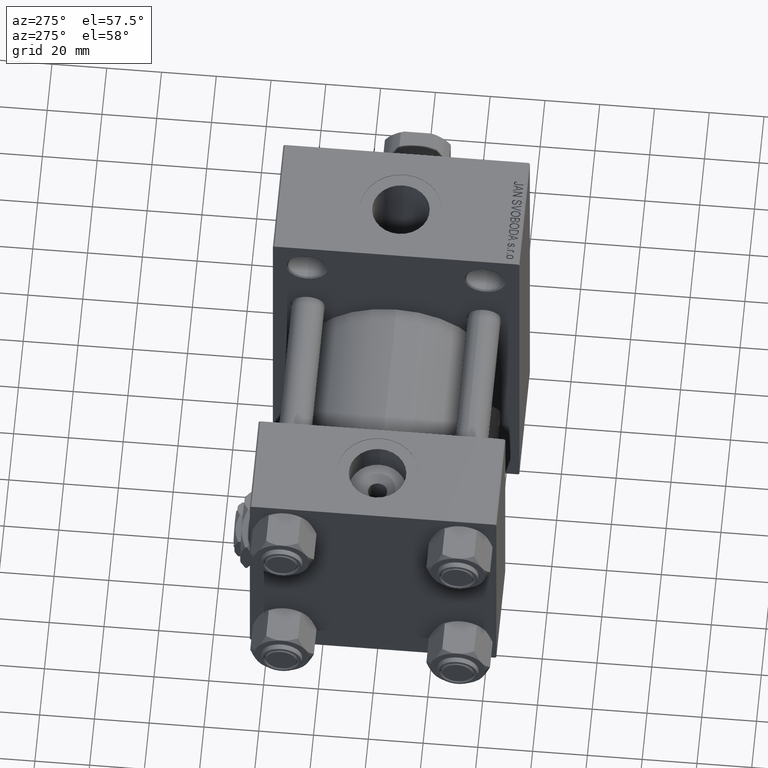
[diagram: clean part render]
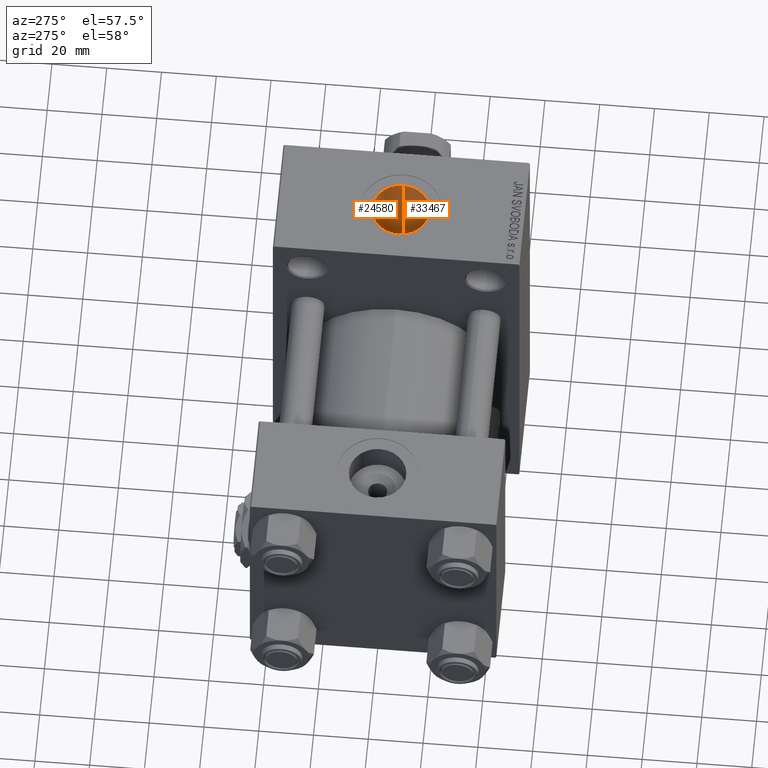
[diagram: same view with one multi-face feature highlighted, each face labeled with its STEP entity id]
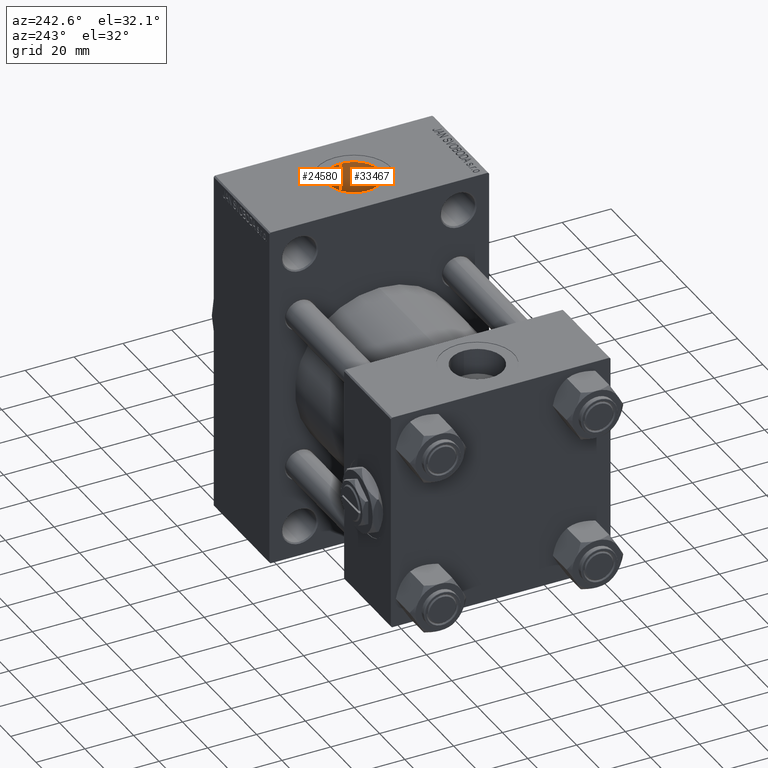
[diagram: same view with one multi-face feature highlighted, each face labeled with its STEP entity id]
A machine part, auxiliary view. The highlighted faces form ONE feature: a constant-radius fillet chain: 2 tangent blend faces with common blend radius 10.48 mm. The faces share edges in the B-rep.
A second angle (auxiliary view) of the same feature is appended — it is thin or edge-on in the first view.
Their STEP definitions:
[1] entity #33467 (Cylinder):
#2419 = CARTESIAN_POINT ( 'NONE',  ( 107.8536174240124694, -6.615275848649987189, 24.11313317637569043 ) ) ;
#2665 = CARTESIAN_POINT ( 'NONE',  ( 112.2166163324468187, -9.788752968036774860, 23.00467774806668331 ) ) ;
#2899 = CARTESIAN_POINT ( 'NONE',  ( 105.5200000000000102, -0.5526487399564715686, 25.00000000000000355 ) ) ;
#3116 = CARTESIAN_POINT ( 'NONE',  ( 123.6953313842686697, -7.126116182886379491, 29.14312091195552057 ) ) ;
#3119 = VERTEX_POINT ( 'NONE', #33826 ) ;
#3314 = LINE ( 'NONE', #44643, #41528 ) ;
#3852 = CARTESIAN_POINT ( 'NONE',  ( 122.8130789427704599, -7.973576581528564411, 28.92237366509943541 ) ) ;
#4047 = CARTESIAN_POINT ( 'NONE',  ( 105.5199999999999960, 3.061579607129328475E-15, 25.00000000000000000 ) ) ;
#6376 = CARTESIAN_POINT ( 'NONE',  ( 108.2050283705145972, -7.025831027277333440, 23.99580452550001652 ) ) ;
#6593 = CARTESIAN_POINT ( 'NONE',  ( 126.0890390176183047, -2.865498728266689277, 29.86553233084089598 ) ) ;
#7050 = AXIS2_PLACEMENT_3D ( 'NONE', #45043, #29959, #11390 ) ;
#7152 = CARTESIAN_POINT ( 'NONE',  ( 116.0000000000000000, -1.094803260394251466E-14, 93.79999999999996874 ) ) ;
#7905 = FACE_OUTER_BOUND ( 'NONE', #22568, .T. ) ;
#8788 = ORIENTED_EDGE ( 'NONE', *, *, #27553, .T. ) ;
#9358 = ORIENTED_EDGE ( 'NONE', *, *, #48618, .F. ) ;
#9839 = CARTESIAN_POINT ( 'NONE',  ( 106.2133645239136825, -3.788497290311540144, 24.71686331191869712 ) ) ;
#10337 = CARTESIAN_POINT ( 'NONE',  ( 110.2686167523512495, -8.790768987372265642, 23.40594614296280440 ) ) ;
#11030 = CARTESIAN_POINT ( 'NONE',  ( 116.0079132330771188, -10.51264281222110952, 28.09784841831593738 ) ) ;
#11130 = ORIENTED_EDGE ( 'NONE', *, *, #47402, .T. ) ;
#11281 = CARTESIAN_POINT ( 'NONE',  ( 126.3561768723854044, -1.659168348792957159, 29.95693324364475885 ) ) ;
#11390 = DIRECTION ( 'NONE',  ( 1.000000000000000000, 0.000000000000000000, 0.000000000000000000 ) ) ;
#11585 = B_SPLINE_CURVE_WITH_KNOTS ( 'NONE', 3,
 ( #21932, #25657, #29613, #11281, #14268, #6593, #44454, #18709, #44927, #22176, #29131, #3116, #14026, #3852, #37521, #40746, #33802, #33321, #36787, #18224, #48425, #48908, #26386, #14506, #11030, #25891, #26134, #41230, #40986, #14997 ),
 .UNSPECIFIED., .F., .F.,
 ( 4, 2, 2, 2, 2, 2, 2, 2, 2, 2, 2, 2, 2, 2, 4 ),
 ( 0.01983178583558416891, 0.02107005794959066619, 0.02230833006359716347, 0.02354660217760366075, 0.02478487429161015804, 0.02726141851962313178, 0.02849969063362963254, 0.02973796274763613329, 0.03097623486164263404, 0.03221450697564913479, 0.03345277908965563207, 0.03469105120366213629, 0.03716759543167513780, 0.03840586754568163508, 0.03964413965968813930 ),
 .UNSPECIFIED. ) ;
#13808 = CARTESIAN_POINT ( 'NONE',  ( 112.7400000000000375, -9.960060240781698937, 22.93026820601973981 ) ) ;
#13912 = VERTEX_POINT ( 'NONE', #30392 ) ;
#14026 = CARTESIAN_POINT ( 'NONE',  ( 123.4108071772773485, -7.421314247701561229, 29.06898203862667529 ) ) ;
#14268 = CARTESIAN_POINT ( 'NONE',  ( 126.2826880867323496, -2.065458053724753995, 29.93150493033227022 ) ) ;
#14506 = CARTESIAN_POINT ( 'NONE',  ( 116.8323486893806091, -10.48013219117958350, 28.11025684355165666 ) ) ;
#14997 = CARTESIAN_POINT ( 'NONE',  ( 112.7400000000000375, -9.960060240781698937, 28.29836037653064551 ) ) ;
#18224 = CARTESIAN_POINT ( 'NONE',  ( 119.6511764337021759, -9.831921411942657230, 28.34362233849840607 ) ) ;
#18410 = VERTEX_POINT ( 'NONE', #28938 ) ;
#18709 = CARTESIAN_POINT ( 'NONE',  ( 125.6812555715534074, -4.034166111592121240, 29.73008374493929651 ) ) ;
#19037 = CYLINDRICAL_SURFACE ( 'NONE', #39522, 10.48000000000000398 ) ;
#19206 = ORIENTED_EDGE ( 'NONE', *, *, #44425, .T. ) ;
#19973 = LINE ( 'NONE', #39256, #20534 ) ;
#20078 = VERTEX_POINT ( 'NONE', #46275 ) ;
#20534 = VECTOR ( 'NONE', #48151, 1000.000000000000000 ) ;
#21238 = CARTESIAN_POINT ( 'NONE',  ( 108.9710119791482725, -7.792124981740102818, 23.75802442794438463 ) ) ;
#21932 = CARTESIAN_POINT ( 'NONE',  ( 126.4800000000000040, 3.673940397618681979E-15, 30.00000000000000000 ) ) ;
#22176 = CARTESIAN_POINT ( 'NONE',  ( 124.9516850616486181, -5.511024492678212816, 29.49874548845619415 ) ) ;
#22568 = EDGE_LOOP ( 'NONE', ( #38522, #8788, #11130, #9358, #19206, #23735 ) ) ;
#23735 = ORIENTED_EDGE ( 'NONE', *, *, #48623, .F. ) ;
#24166 = B_SPLINE_CURVE_WITH_KNOTS ( 'NONE', 3,
 ( #13808, #2665, #33346, #29393, #10337, #48449, #21238, #6376, #2419, #25682, #32614, #25441, #9839, #28907, #25197, #33098, #47480, #43987, #2899, #28668 ),
 .UNSPECIFIED., .F., .F.,
 ( 4, 2, 2, 2, 2, 2, 2, 2, 2, 4 ),
 ( 0.01988964932192578347, 0.02154756030224162094, 0.02320547128255745842, 0.02486338226287329589, 0.02652129324318913683, 0.02817920422350497084, 0.02983711520382081178, 0.03066607069397872878, 0.03149502618413664579, 0.03315293716445248673 ),
 .UNSPECIFIED. ) ;
#25197 = CARTESIAN_POINT ( 'NONE',  ( 105.8813829677837219, -2.742400269040762062, 24.85060264423316667 ) ) ;
#25441 = CARTESIAN_POINT ( 'NONE',  ( 106.4236355937511860, -4.292206019337017509, 24.63377942571623791 ) ) ;
#25657 = CARTESIAN_POINT ( 'NONE',  ( 126.4799999999999471, -0.4140493469419934125, 30.00000000000001066 ) ) ;
#25682 = CARTESIAN_POINT ( 'NONE',  ( 107.2133851667944242, -5.737667069548106014, 24.33689057242902365 ) ) ;
#25850 = DIRECTION ( 'NONE',  ( 0.000000000000000000, 0.000000000000000000, -1.000000000000000000 ) ) ;
#25891 = CARTESIAN_POINT ( 'NONE',  ( 114.7699339040235316, -10.41578934976508819, 28.13383227326702496 ) ) ;
#26134 = CARTESIAN_POINT ( 'NONE',  ( 114.3547903624770328, -10.35843936797070697, 28.15511119385354633 ) ) ;
#26386 = CARTESIAN_POINT ( 'NONE',  ( 118.0676511321232738, -10.28246626870992841, 28.18289933756998522 ) ) ;
#27553 = EDGE_CURVE ( 'NONE', #20078, #33452, #19973, .T. ) ;
#28668 = CARTESIAN_POINT ( 'NONE',  ( 105.5199999999999960, 3.061579607129328475E-15, 25.00000000000000000 ) ) ;
#28907 = CARTESIAN_POINT ( 'NONE',  ( 105.9569663818569580, -3.007160148706868874, 24.81987104649663323 ) ) ;
#28938 = CARTESIAN_POINT ( 'NONE',  ( 112.7400000000000375, -9.960060240781698937, 28.29836037653064551 ) ) ;
#29131 = CARTESIAN_POINT ( 'NONE',  ( 124.4977574635255451, -6.188339515081483277, 29.36182159556007321 ) ) ;
#29393 = CARTESIAN_POINT ( 'NONE',  ( 110.7309451898282191, -9.075553538226490247, 23.29606161660610297 ) ) ;
#29613 = CARTESIAN_POINT ( 'NONE',  ( 126.4550640607020284, -0.8335913317593991456, 29.99126230196789678 ) ) ;
#29959 = DIRECTION ( 'NONE',  ( -0.000000000000000000, -0.000000000000000000, -1.000000000000000000 ) ) ;
#30172 = DIRECTION ( 'NONE',  ( 0.000000000000000000, 0.000000000000000000, -1.000000000000000000 ) ) ;
#30392 = CARTESIAN_POINT ( 'NONE',  ( 112.7400000000000375, -9.960060240781698937, 22.93026820601973981 ) ) ;
#30591 = EDGE_CURVE ( 'NONE', #20078, #3119, #30791, .T. ) ;
#30791 = CIRCLE ( 'NONE', #7050, 10.48000000000000398 ) ;
#32614 = CARTESIAN_POINT ( 'NONE',  ( 106.9226781161778490, -5.266119555344892511, 24.44410166351154601 ) ) ;
#33098 = CARTESIAN_POINT ( 'NONE',  ( 105.7506109030364456, -2.203904040410064713, 24.90413656399007891 ) ) ;
#33149 = CARTESIAN_POINT ( 'NONE',  ( 126.4800000000000040, 3.673940397618681979E-15, 30.00000000000000000 ) ) ;
#33321 = CARTESIAN_POINT ( 'NONE',  ( 120.7754301067501075, -9.337894368229051167, 28.51050477243452619 ) ) ;
#33346 = CARTESIAN_POINT ( 'NONE',  ( 111.7027284824028044, -9.574030923381087632, 23.09567255457320911 ) ) ;
#33452 = VERTEX_POINT ( 'NONE', #33149 ) ;
#33467 = ADVANCED_FACE ( 'NONE', ( #7905 ), #19037, .F. ) ;
#33633 = DIRECTION ( 'NONE',  ( -1.000000000000000000, 0.000000000000000000, 0.000000000000000000 ) ) ;
#33802 = CARTESIAN_POINT ( 'NONE',  ( 121.4955340743380532, -8.933090684329171083, 28.63992046840855110 ) ) ;
#33826 = CARTESIAN_POINT ( 'NONE',  ( 105.5199999999999960, -1.094803260394251466E-14, 70.79999999999996874 ) ) ;
#36737 = DIRECTION ( 'NONE',  ( -0.000000000000000000, -0.000000000000000000, 1.000000000000000000 ) ) ;
#36787 = CARTESIAN_POINT ( 'NONE',  ( 120.4065122839482740, -9.517374506241301546, 28.45078537450224943 ) ) ;
#37521 = CARTESIAN_POINT ( 'NONE',  ( 122.4991569451229054, -8.231478667600777399, 28.84970080865382869 ) ) ;
#38522 = ORIENTED_EDGE ( 'NONE', *, *, #30591, .F. ) ;
#39256 = CARTESIAN_POINT ( 'NONE',  ( 126.4800000000000040, -9.664602758436087591E-15, 93.79999999999996874 ) ) ;
#39522 = AXIS2_PLACEMENT_3D ( 'NONE', #7152, #30172, #33633 ) ;
#39731 = VERTEX_POINT ( 'NONE', #4047 ) ;
#40746 = CARTESIAN_POINT ( 'NONE',  ( 121.8407164529724724, -8.711045480795176488, 28.70853818005238267 ) ) ;
#40986 = CARTESIAN_POINT ( 'NONE',  ( 113.1356366639054301, -10.08955499213377394, 28.25278262901557724 ) ) ;
#41230 = CARTESIAN_POINT ( 'NONE',  ( 113.5376865130923534, -10.19514556951084749, 28.21465150049997916 ) ) ;
#41528 = VECTOR ( 'NONE', #25850, 1000.000000000000000 ) ;
#43987 = CARTESIAN_POINT ( 'NONE',  ( 105.5634374036090293, -1.103933992171570289, 24.98169420149659103 ) ) ;
#44163 = LINE ( 'NONE', #48376, #44694 ) ;
#44425 = EDGE_CURVE ( 'NONE', #13912, #39731, #24166, .T. ) ;
#44454 = CARTESIAN_POINT ( 'NONE',  ( 125.9688766884320188, -3.259248874892656911, 29.82498403132067466 ) ) ;
#44643 = CARTESIAN_POINT ( 'NONE',  ( 105.5199999999999960, -1.094803260394251466E-14, 93.79999999999996874 ) ) ;
#44694 = VECTOR ( 'NONE', #36737, 1000.000000000000000 ) ;
#44927 = CARTESIAN_POINT ( 'NONE',  ( 125.5132943898858144, -4.415432476193863032, 29.67559266697256604 ) ) ;
#45043 = CARTESIAN_POINT ( 'NONE',  ( 116.0000000000000000, -1.094803260394251466E-14, 70.79999999999996874 ) ) ;
#46275 = CARTESIAN_POINT ( 'NONE',  ( 126.4800000000000040, -9.664602758436087591E-15, 70.79999999999996874 ) ) ;
#47402 = EDGE_CURVE ( 'NONE', #33452, #18410, #11585, .T. ) ;
#47480 = CARTESIAN_POINT ( 'NONE',  ( 105.6952564760870388, -1.928778934517578758, 24.92700825772721984 ) ) ;
#48151 = DIRECTION ( 'NONE',  ( 0.000000000000000000, 0.000000000000000000, -1.000000000000000000 ) ) ;
#48376 = CARTESIAN_POINT ( 'NONE',  ( 112.7400000000000375, -9.960060240781698937, 93.79999999999996874 ) ) ;
#48425 = CARTESIAN_POINT ( 'NONE',  ( 119.2647576281308659, -9.966984633129877480, 28.29617465522276376 ) ) ;
#48449 = CARTESIAN_POINT ( 'NONE',  ( 109.3891897638274031, -8.150065112751551766, 23.63667431967812504 ) ) ;
#48618 = EDGE_CURVE ( 'NONE', #13912, #18410, #44163, .T. ) ;
#48623 = EDGE_CURVE ( 'NONE', #3119, #39731, #3314, .T. ) ;
#48908 = CARTESIAN_POINT ( 'NONE',  ( 118.4739236950475174, -10.19211099814794075, 28.21586709986687325 ) ) ;
[2] entity #24580 (Cylinder):
#277 = CARTESIAN_POINT ( 'NONE',  ( 110.7334908428740476, 9.077331294423922614, 23.29539276492242905 ) ) ;
#589 = VECTOR ( 'NONE', #19286, 1000.000000000000000 ) ;
#639 = CARTESIAN_POINT ( 'NONE',  ( 125.1456671303457568, 5.133639323080407380, 29.55979794353439871 ) ) ;
#2576 = ORIENTED_EDGE ( 'NONE', *, *, #32062, .T. ) ;
#3119 = VERTEX_POINT ( 'NONE', #33826 ) ;
#3314 = LINE ( 'NONE', #44643, #41528 ) ;
#3725 = CARTESIAN_POINT ( 'NONE',  ( 106.2242790990456740, 3.787004330726786439, 24.71284667523638845 ) ) ;
#3980 = CARTESIAN_POINT ( 'NONE',  ( 110.2707649538851058, 8.791964167062978674, 23.40546361773868611 ) ) ;
#4047 = CARTESIAN_POINT ( 'NONE',  ( 105.5199999999999960, 3.061579607129328475E-15, 25.00000000000000000 ) ) ;
#4350 = CARTESIAN_POINT ( 'NONE',  ( 117.2444743077375477, 10.41402026144617921, 28.13455134504983590 ) ) ;
#4424 = LINE ( 'NONE', #23004, #589 ) ;
#5306 = CARTESIAN_POINT ( 'NONE',  ( 119.2590511626586647, 9.968980903825993778, 28.29547369785728250 ) ) ;
#6037 = CARTESIAN_POINT ( 'NONE',  ( 126.3830360161806396, 1.648097371455661930, 29.96570276014226408 ) ) ;
#7449 = CARTESIAN_POINT ( 'NONE',  ( 105.7407124806769758, 2.210995156578866805, 24.90815361058044530 ) ) ;
#7701 = CARTESIAN_POINT ( 'NONE',  ( 108.2191150461718792, 7.025825097695094890, 23.99341311413245847 ) ) ;
#8067 = CARTESIAN_POINT ( 'NONE',  ( 122.8380018292597526, 7.984464829307546196, 28.92238598225677748 ) ) ;
#8551 = CARTESIAN_POINT ( 'NONE',  ( 118.4620306645708467, 10.19511646566076912, 28.21478357702914863 ) ) ;
#8783 = CARTESIAN_POINT ( 'NONE',  ( 114.3405906774044922, 10.38092379675460464, 28.14678245432905257 ) ) ;
#9270 = B_SPLINE_CURVE_WITH_KNOTS ( 'NONE', 3,
 ( #26764, #48791, #26266, #18837, #41354, #7449, #22546, #37644, #3725, #26512, #33933, #15379, #15129, #45311, #41606, #7701, #22796, #34185, #37895, #3980, #277, #30472, #45559, #38154 ),
 .UNSPECIFIED., .F., .F.,
 ( 4, 2, 2, 2, 2, 2, 2, 2, 2, 2, 2, 4 ),
 ( 0.03315293716445248673, 0.03398143856659530115, 0.03480993996873811558, 0.03646694277302374443, 0.03729544417516655191, 0.03812394557730936634, 0.03978094838159499519, 0.04060944978373780961, 0.04143795118588062404, 0.04309495399016624595, 0.04475195679445187480, 0.04640895959873749671 ),
 .UNSPECIFIED. ) ;
#10804 = EDGE_CURVE ( 'NONE', #21964, #20368, #4424, .T. ) ;
#11566 = CARTESIAN_POINT ( 'NONE',  ( 116.0000000000000000, -1.094803260394251466E-14, 70.79999999999996874 ) ) ;
#11756 = DIRECTION ( 'NONE',  ( 0.000000000000000000, 0.000000000000000000, -1.000000000000000000 ) ) ;
#11776 = ORIENTED_EDGE ( 'NONE', *, *, #27553, .F. ) ;
#11784 = CARTESIAN_POINT ( 'NONE',  ( 118.0591099703892723, 10.28399729863217438, 28.18233838691855198 ) ) ;
#12269 = CARTESIAN_POINT ( 'NONE',  ( 125.6823871826148178, 4.031213830330547587, 29.73045584359391214 ) ) ;
#12481 = DIRECTION ( 'NONE',  ( -1.000000000000000000, 0.000000000000000000, 0.000000000000000000 ) ) ;
#13723 = CARTESIAN_POINT ( 'NONE',  ( 126.4800000000000040, 3.673940397618681979E-15, 30.00000000000000000 ) ) ;
#15129 = CARTESIAN_POINT ( 'NONE',  ( 107.2168952918916318, 5.742964677340212098, 24.33562597405337158 ) ) ;
#15379 = CARTESIAN_POINT ( 'NONE',  ( 106.9306559456026946, 5.280155339913236823, 24.44112276137722262 ) ) ;
#16457 = CARTESIAN_POINT ( 'NONE',  ( 116.0002282757462808, 10.48827684731155330, 28.10687390860659107 ) ) ;
#16748 = AXIS2_PLACEMENT_3D ( 'NONE', #34273, #11756, #12481 ) ;
#18837 = CARTESIAN_POINT ( 'NONE',  ( 105.5748675089374160, 1.106412475567419396, 24.97704123077414096 ) ) ;
#19286 = DIRECTION ( 'NONE',  ( 0.000000000000000000, 0.000000000000000000, -1.000000000000000000 ) ) ;
#19973 = LINE ( 'NONE', #39256, #20534 ) ;
#20078 = VERTEX_POINT ( 'NONE', #46275 ) ;
#20368 = VERTEX_POINT ( 'NONE', #34824 ) ;
#20417 = CARTESIAN_POINT ( 'NONE',  ( 119.6536175153769790, 9.831116643405007238, 28.34390843602811927 ) ) ;
#20534 = VECTOR ( 'NONE', #48151, 1000.000000000000000 ) ;
#20674 = AXIS2_PLACEMENT_3D ( 'NONE', #11566, #27638, #31106 ) ;
#21521 = B_SPLINE_CURVE_WITH_KNOTS ( 'NONE', 3,
 ( #23166, #42689, #8783, #39219, #16457, #23894, #4350, #11784, #8551, #5306, #20417, #26884, #46174, #8067, #23653, #34549, #38984, #27130, #639, #42214, #12269, #24864, #28093, #6037, #44147, #13723 ),
 .UNSPECIFIED., .F., .F.,
 ( 4, 2, 2, 2, 2, 2, 2, 2, 2, 2, 2, 2, 4 ),
 ( 0.000000000000000000, 0.002478973229448049737, 0.003718459844172074605, 0.004957946458896099473, 0.006197433073620124341, 0.007436919688344149210, 0.009915892917792157313, 0.01239486614724016542, 0.01363435276196416600, 0.01487383937668817005, 0.01611332599141217237, 0.01735281260613617815, 0.01983178583558416891 ),
 .UNSPECIFIED. ) ;
#21798 = EDGE_CURVE ( 'NONE', #21964, #33452, #21521, .T. ) ;
#21964 = VERTEX_POINT ( 'NONE', #47142 ) ;
#22546 = CARTESIAN_POINT ( 'NONE',  ( 105.8714792709155716, 2.746840284963956158, 24.85421337676989140 ) ) ;
#22796 = CARTESIAN_POINT ( 'NONE',  ( 108.4055094269453008, 7.226927296489276564, 23.93349527817645139 ) ) ;
#23004 = CARTESIAN_POINT ( 'NONE',  ( 112.7400000000000375, 9.960060240781677621, 93.79999999999996874 ) ) ;
#23166 = CARTESIAN_POINT ( 'NONE',  ( 112.7400000000000375, 9.960060240781677621, 28.29836037653065262 ) ) ;
#23653 = CARTESIAN_POINT ( 'NONE',  ( 123.4361280113390649, 7.429595108124754432, 29.07242469717889222 ) ) ;
#23894 = CARTESIAN_POINT ( 'NONE',  ( 116.8327597629122323, 10.45516439159307254, 28.11920784241486970 ) ) ;
#24157 = EDGE_CURVE ( 'NONE', #3119, #20078, #35676, .T. ) ;
#24580 = ADVANCED_FACE ( 'NONE', ( #45404 ), #27341, .F. ) ;
#24864 = CARTESIAN_POINT ( 'NONE',  ( 125.9683417730960713, 3.260593319422029346, 29.82480881445975385 ) ) ;
#25850 = DIRECTION ( 'NONE',  ( 0.000000000000000000, 0.000000000000000000, -1.000000000000000000 ) ) ;
#26266 = CARTESIAN_POINT ( 'NONE',  ( 105.5308991753443166, 0.5526879277622503972, 24.99542504668380616 ) ) ;
#26512 = CARTESIAN_POINT ( 'NONE',  ( 106.4364837241044199, 4.294796546401079773, 24.62967549968344017 ) ) ;
#26764 = CARTESIAN_POINT ( 'NONE',  ( 105.5199999999999960, 3.061579607129328475E-15, 25.00000000000000000 ) ) ;
#26828 = ORIENTED_EDGE ( 'NONE', *, *, #10804, .F. ) ;
#26884 = CARTESIAN_POINT ( 'NONE',  ( 120.7931686517055709, 9.355930520045824039, 28.50576369173083435 ) ) ;
#27130 = CARTESIAN_POINT ( 'NONE',  ( 124.9382592368621943, 5.487081182378864774, 29.49600040171357307 ) ) ;
#27341 = CYLINDRICAL_SURFACE ( 'NONE', #16748, 10.48000000000000398 ) ;
#27553 = EDGE_CURVE ( 'NONE', #20078, #33452, #19973, .T. ) ;
#27638 = DIRECTION ( 'NONE',  ( -0.000000000000000000, -0.000000000000000000, -1.000000000000000000 ) ) ;
#28093 = CARTESIAN_POINT ( 'NONE',  ( 126.0901672462784688, 2.862209008249557929, 29.86591119163860952 ) ) ;
#30472 = CARTESIAN_POINT ( 'NONE',  ( 111.7145022253386344, 9.579591377203493963, 23.09339075464095714 ) ) ;
#31106 = DIRECTION ( 'NONE',  ( 1.000000000000000000, 0.000000000000000000, 0.000000000000000000 ) ) ;
#32062 = EDGE_CURVE ( 'NONE', #39731, #20368, #9270, .T. ) ;
#33149 = CARTESIAN_POINT ( 'NONE',  ( 126.4800000000000040, 3.673940397618681979E-15, 30.00000000000000000 ) ) ;
#33452 = VERTEX_POINT ( 'NONE', #33149 ) ;
#33826 = CARTESIAN_POINT ( 'NONE',  ( 105.5199999999999960, -1.094803260394251466E-14, 70.79999999999996874 ) ) ;
#33933 = CARTESIAN_POINT ( 'NONE',  ( 106.5534232013268507, 4.546234407114488896, 24.58442359052068227 ) ) ;
#34185 = CARTESIAN_POINT ( 'NONE',  ( 108.9846989220167615, 7.804704455460329093, 23.75393200882464484 ) ) ;
#34273 = CARTESIAN_POINT ( 'NONE',  ( 116.0000000000000000, -1.094803260394251466E-14, 93.79999999999996874 ) ) ;
#34549 = CARTESIAN_POINT ( 'NONE',  ( 124.2306735501210682, 6.500194899328790576, 29.28905352826703279 ) ) ;
#34824 = CARTESIAN_POINT ( 'NONE',  ( 112.7400000000000375, 9.960060240781677621, 22.93026820601974691 ) ) ;
#35676 = CIRCLE ( 'NONE', #20674, 10.48000000000000398 ) ;
#37644 = CARTESIAN_POINT ( 'NONE',  ( 106.1284384137638739, 3.529601645624522277, 24.75098332906153331 ) ) ;
#37895 = CARTESIAN_POINT ( 'NONE',  ( 109.3963603562479676, 8.155655190358228168, 23.63471280748279924 ) ) ;
#38084 = EDGE_LOOP ( 'NONE', ( #11776, #42237, #44151, #2576, #26828, #45889 ) ) ;
#38154 = CARTESIAN_POINT ( 'NONE',  ( 112.7400000000000375, 9.960060240781677621, 22.93026820601974691 ) ) ;
#38984 = CARTESIAN_POINT ( 'NONE',  ( 124.4793501314061359, 6.172613663302646714, 29.36019312204046727 ) ) ;
#39219 = CARTESIAN_POINT ( 'NONE',  ( 115.5797722390586841, 10.47976684723566265, 28.11006442857998877 ) ) ;
#39256 = CARTESIAN_POINT ( 'NONE',  ( 126.4800000000000040, -9.664602758436087591E-15, 93.79999999999996874 ) ) ;
#39731 = VERTEX_POINT ( 'NONE', #4047 ) ;
#41354 = CARTESIAN_POINT ( 'NONE',  ( 105.6081712893590776, 1.384942614456408760, 24.96313457725881335 ) ) ;
#41528 = VECTOR ( 'NONE', #25850, 1000.000000000000000 ) ;
#41606 = CARTESIAN_POINT ( 'NONE',  ( 107.8651253838970376, 6.612730445768647769, 24.11053477674085954 ) ) ;
#42214 = CARTESIAN_POINT ( 'NONE',  ( 125.5177326829066118, 4.405705906582507936, 29.67702246902073782 ) ) ;
#42237 = ORIENTED_EDGE ( 'NONE', *, *, #24157, .F. ) ;
#42689 = CARTESIAN_POINT ( 'NONE',  ( 113.5317014108506442, 10.21918985817145753, 28.20715556589740558 ) ) ;
#44147 = CARTESIAN_POINT ( 'NONE',  ( 126.4799999999999756, 0.8289108953755167652, 29.99999999999999289 ) ) ;
#44151 = ORIENTED_EDGE ( 'NONE', *, *, #48623, .T. ) ;
#44643 = CARTESIAN_POINT ( 'NONE',  ( 105.5199999999999960, -1.094803260394251466E-14, 93.79999999999996874 ) ) ;
#45311 = CARTESIAN_POINT ( 'NONE',  ( 107.6967244621315274, 6.399965487557570221, 24.16798554837829016 ) ) ;
#45404 = FACE_OUTER_BOUND ( 'NONE', #38084, .T. ) ;
#45559 = CARTESIAN_POINT ( 'NONE',  ( 112.2204695759653958, 9.790014162604533610, 23.00412993180228227 ) ) ;
#45889 = ORIENTED_EDGE ( 'NONE', *, *, #21798, .T. ) ;
#46174 = CARTESIAN_POINT ( 'NONE',  ( 121.5055286267077435, 8.955395143035861594, 28.63663715154386225 ) ) ;
#46275 = CARTESIAN_POINT ( 'NONE',  ( 126.4800000000000040, -9.664602758436087591E-15, 70.79999999999996874 ) ) ;
#47142 = CARTESIAN_POINT ( 'NONE',  ( 112.7400000000000375, 9.960060240781677621, 28.29836037653065262 ) ) ;
#48151 = DIRECTION ( 'NONE',  ( 0.000000000000000000, 0.000000000000000000, -1.000000000000000000 ) ) ;
#48623 = EDGE_CURVE ( 'NONE', #3119, #39731, #3314, .T. ) ;
#48791 = CARTESIAN_POINT ( 'NONE',  ( 105.5200000000000387, 0.2761730040892637628, 25.00000000000000711 ) ) ;